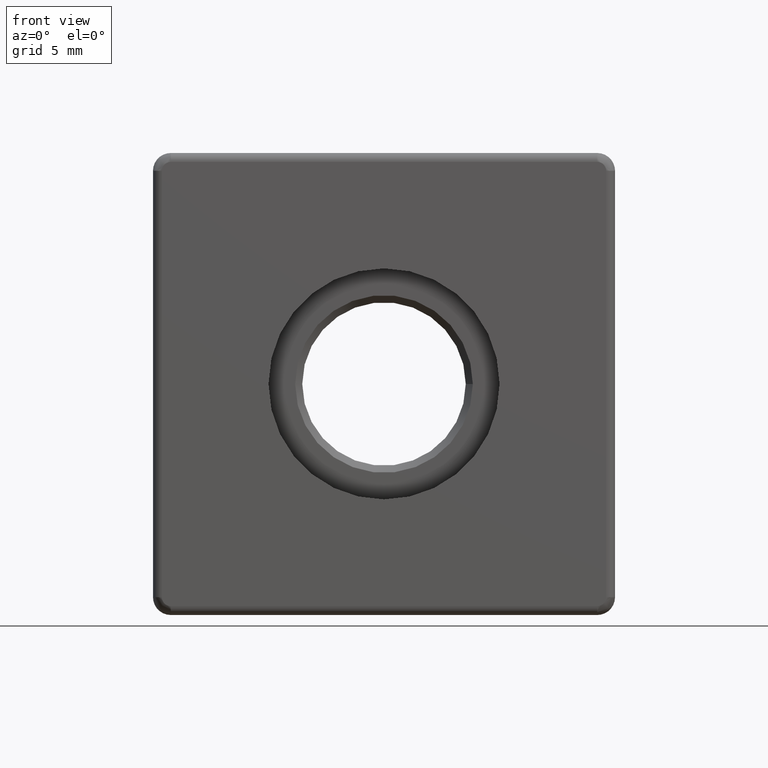
[diagram: clean part render]
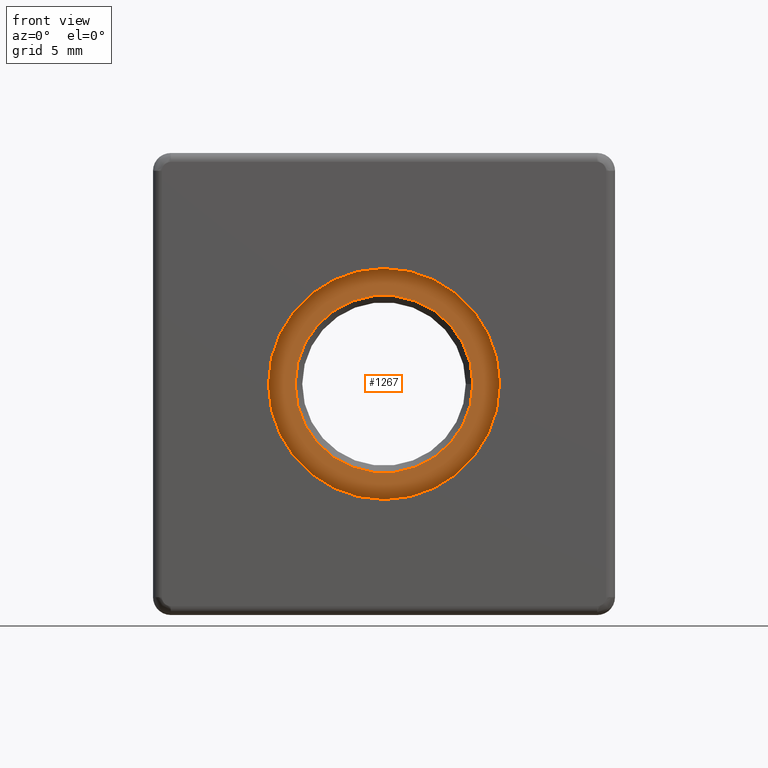
[diagram: same view with one face highlighted and labeled with its STEP entity id]
A machine part, front view. The second image highlights one B-rep face of the part: STEP entity #1267.
In plain terms, the highlighted planar face has unit normal (0, 1, 0).
Its self-contained STEP definition (entity closure, byte-faithful):
#24=FACE_BOUND('',#421,.T.);
#264=PLANE('',#1414);
#338=FACE_OUTER_BOUND('',#420,.T.);
#420=EDGE_LOOP('',(#1173));
#421=EDGE_LOOP('',(#1174));
#490=CIRCLE('',#1382,5.);
#503=CIRCLE('',#1413,6.5);
#622=VERTEX_POINT('',#2313);
#638=VERTEX_POINT('',#2377);
#791=EDGE_CURVE('',#622,#622,#490,.T.);
#821=EDGE_CURVE('',#638,#638,#503,.T.);
#1173=ORIENTED_EDGE('',*,*,#821,.F.);
#1174=ORIENTED_EDGE('',*,*,#791,.T.);
#1267=ADVANCED_FACE('',(#338,#24),#264,.F.);
#1382=AXIS2_PLACEMENT_3D('',#2314,#1710,#1711);
#1413=AXIS2_PLACEMENT_3D('',#2378,#1789,#1790);
#1414=AXIS2_PLACEMENT_3D('',#2379,#1791,#1792);
#1710=DIRECTION('center_axis',(0.,1.,0.));
#1711=DIRECTION('ref_axis',(1.,0.,0.));
#1789=DIRECTION('center_axis',(0.,1.,0.));
#1790=DIRECTION('ref_axis',(-1.,0.,0.));
#1791=DIRECTION('center_axis',(0.,1.,0.));
#1792=DIRECTION('ref_axis',(0.,0.,1.));
#2313=CARTESIAN_POINT('',(5.,-2.5,0.));
#2314=CARTESIAN_POINT('Origin',(0.,-2.5,0.));
#2377=CARTESIAN_POINT('',(6.5,-2.5,7.96020419445779E-16));
#2378=CARTESIAN_POINT('Origin',(0.,-2.5,0.));
#2379=CARTESIAN_POINT('Origin',(-3.51007605370522E-16,-2.5,1.42336285208353E-16));